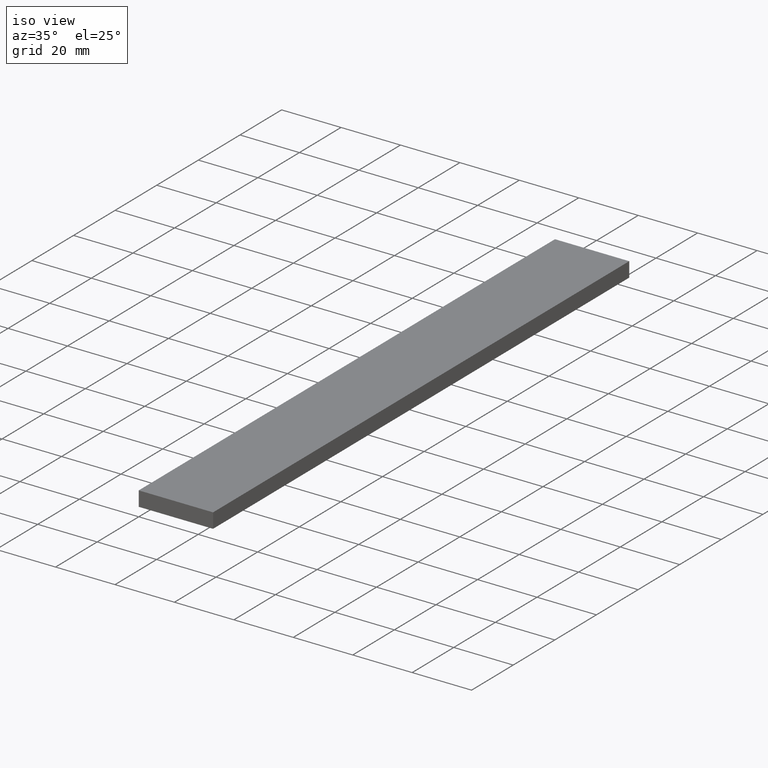
[diagram: clean part render]
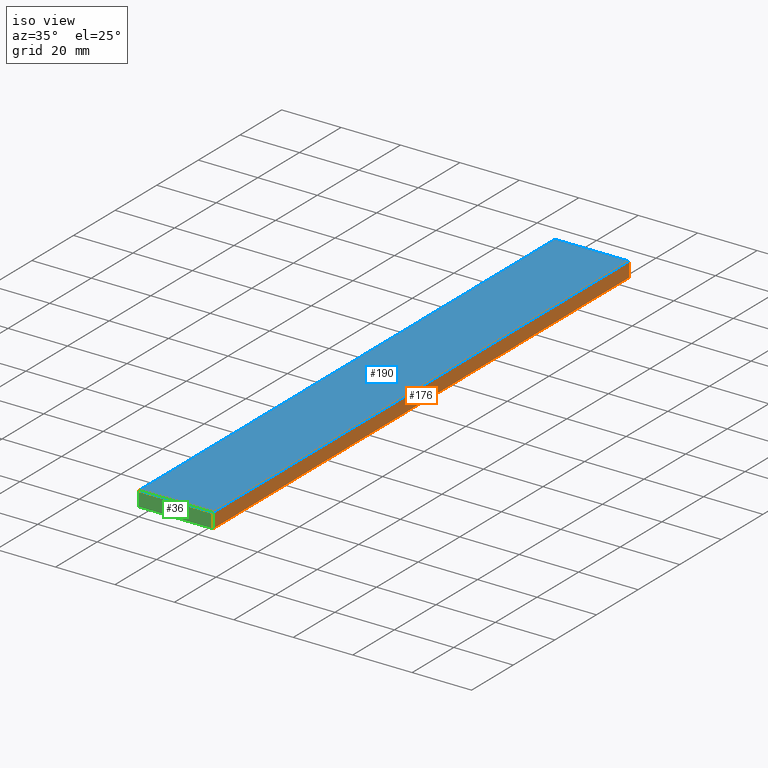
[diagram: same view with three faces highlighted in distinct colors, each labeled with its STEP entity id]
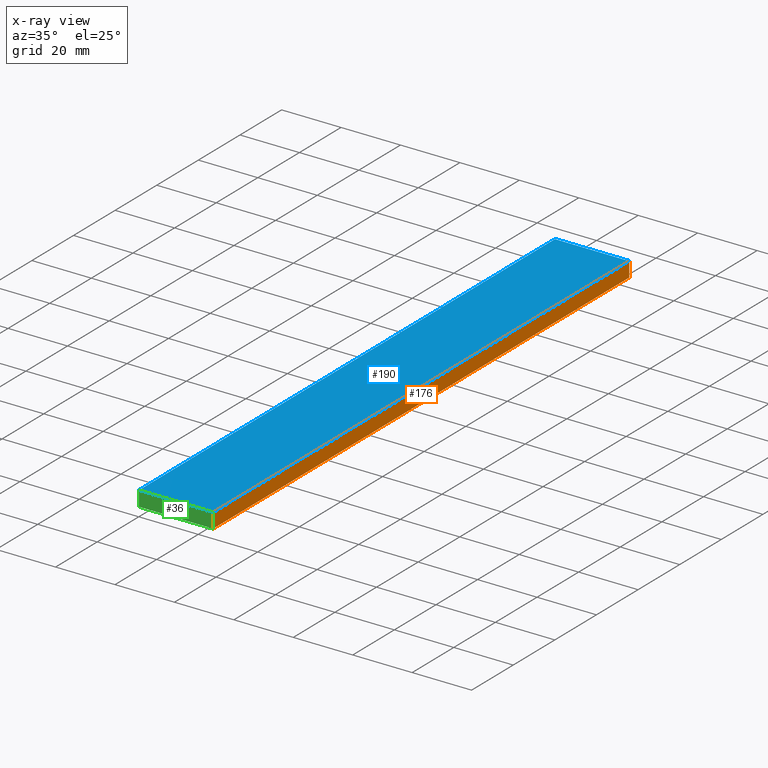
[diagram: x-ray of the same camera — body ghosted, the three highlighted faces saturated]
A machine part, iso view with three faces highlighted in distinct colors.
The next image is the same camera in x-ray (body ghosted, the three faces saturated) — at least one of them is partly hidden behind the body in this view.
Their STEP definitions:

[orange] entity #176 — the highlighted planar face has unit normal (-1, 0, 0).
#1 = EDGE_CURVE ( 'NONE', #182, #188, #45, .T. ) ;
#3 = CARTESIAN_POINT ( 'NONE',  ( 25.00000000000000000, 1000.000000000000000, 5.000000000000000000 ) ) ;
#9 = LINE ( 'NONE', #32, #164 ) ;
#17 = EDGE_CURVE ( 'NONE', #188, #22, #199, .T. ) ;
#21 = ORIENTED_EDGE ( 'NONE', *, *, #1, .T. ) ;
#22 = VERTEX_POINT ( 'NONE', #200 ) ;
#26 = ORIENTED_EDGE ( 'NONE', *, *, #17, .T. ) ;
#28 = ORIENTED_EDGE ( 'NONE', *, *, #38, .F. ) ;
#32 = CARTESIAN_POINT ( 'NONE',  ( 25.00000000000000000, 200.0000000000000000, 5.000000000000000000 ) ) ;
#35 = EDGE_LOOP ( 'NONE', ( #26, #208, #28, #21 ) ) ;
#38 = EDGE_CURVE ( 'NONE', #182, #51, #9, .T. ) ;
#40 = VECTOR ( 'NONE', #117, 1000.000000000000000 ) ;
#45 = LINE ( 'NONE', #3, #105 ) ;
#51 = VERTEX_POINT ( 'NONE', #53 ) ;
#53 = CARTESIAN_POINT ( 'NONE',  ( 25.00000000000000000, 200.0000000000000000, 0.0000000000000000000 ) ) ;
#62 = AXIS2_PLACEMENT_3D ( 'NONE', #169, #114, #184 ) ;
#65 = DIRECTION ( 'NONE',  ( 0.0000000000000000000, -1.000000000000000000, 0.0000000000000000000 ) ) ;
#93 = CARTESIAN_POINT ( 'NONE',  ( 25.00000000000000000, 200.0000000000000000, 5.000000000000000000 ) ) ;
#96 = DIRECTION ( 'NONE',  ( 0.0000000000000000000, 0.0000000000000000000, -1.000000000000000000 ) ) ;
#104 = EDGE_CURVE ( 'NONE', #51, #22, #185, .T. ) ;
#105 = VECTOR ( 'NONE', #65, 1000.000000000000000 ) ;
#114 = DIRECTION ( 'NONE',  ( -1.000000000000000000, 0.0000000000000000000, 0.0000000000000000000 ) ) ;
#117 = DIRECTION ( 'NONE',  ( 0.0000000000000000000, -1.000000000000000000, 0.0000000000000000000 ) ) ;
#134 = FACE_OUTER_BOUND ( 'NONE', #35, .T. ) ;
#137 = CARTESIAN_POINT ( 'NONE',  ( 25.00000000000000000, 1000.000000000000000, 0.0000000000000000000 ) ) ;
#159 = DIRECTION ( 'NONE',  ( 0.0000000000000000000, 0.0000000000000000000, -1.000000000000000000 ) ) ;
#160 = VECTOR ( 'NONE', #96, 1000.000000000000000 ) ;
#164 = VECTOR ( 'NONE', #159, 1000.000000000000000 ) ;
#168 = CARTESIAN_POINT ( 'NONE',  ( 25.00000000000000000, 0.0000000000000000000, 5.000000000000000000 ) ) ;
#169 = CARTESIAN_POINT ( 'NONE',  ( 25.00000000000000000, 1000.000000000000000, 5.000000000000000000 ) ) ;
#176 = ADVANCED_FACE ( 'NONE', ( #134 ), #201, .F. ) ;
#182 = VERTEX_POINT ( 'NONE', #93 ) ;
#184 = DIRECTION ( 'NONE',  ( 0.0000000000000000000, 0.0000000000000000000, 1.000000000000000000 ) ) ;
#185 = LINE ( 'NONE', #137, #40 ) ;
#188 = VERTEX_POINT ( 'NONE', #168 ) ;
#199 = LINE ( 'NONE', #233, #160 ) ;
#200 = CARTESIAN_POINT ( 'NONE',  ( 25.00000000000000000, 0.0000000000000000000, 0.0000000000000000000 ) ) ;
#201 = PLANE ( 'NONE',  #62 ) ;
#208 = ORIENTED_EDGE ( 'NONE', *, *, #104, .F. ) ;
#233 = CARTESIAN_POINT ( 'NONE',  ( 25.00000000000000000, 0.0000000000000000000, 5.000000000000000000 ) ) ;

[blue] entity #190 — the highlighted planar face has unit normal (0, 0, -1).
#1 = EDGE_CURVE ( 'NONE', #182, #188, #45, .T. ) ;
#3 = CARTESIAN_POINT ( 'NONE',  ( 25.00000000000000000, 1000.000000000000000, 5.000000000000000000 ) ) ;
#6 = ORIENTED_EDGE ( 'NONE', *, *, #71, .T. ) ;
#13 = CARTESIAN_POINT ( 'NONE',  ( 0.0000000000000000000, 200.0000000000000000, 5.000000000000000000 ) ) ;
#14 = CARTESIAN_POINT ( 'NONE',  ( 0.0000000000000000000, 0.0000000000000000000, 5.000000000000000000 ) ) ;
#24 = VECTOR ( 'NONE', #63, 1000.000000000000000 ) ;
#45 = LINE ( 'NONE', #3, #105 ) ;
#49 = CARTESIAN_POINT ( 'NONE',  ( 0.0000000000000000000, 1000.000000000000000, 5.000000000000000000 ) ) ;
#58 = VERTEX_POINT ( 'NONE', #14 ) ;
#63 = DIRECTION ( 'NONE',  ( 1.000000000000000000, 0.0000000000000000000, 0.0000000000000000000 ) ) ;
#65 = DIRECTION ( 'NONE',  ( 0.0000000000000000000, -1.000000000000000000, 0.0000000000000000000 ) ) ;
#66 = DIRECTION ( 'NONE',  ( 1.000000000000000000, 0.0000000000000000000, 0.0000000000000000000 ) ) ;
#71 = EDGE_CURVE ( 'NONE', #213, #58, #148, .T. ) ;
#79 = LINE ( 'NONE', #196, #24 ) ;
#89 = DIRECTION ( 'NONE',  ( 0.0000000000000000000, 0.0000000000000000000, -1.000000000000000000 ) ) ;
#93 = CARTESIAN_POINT ( 'NONE',  ( 25.00000000000000000, 200.0000000000000000, 5.000000000000000000 ) ) ;
#95 = AXIS2_PLACEMENT_3D ( 'NONE', #49, #89, #211 ) ;
#99 = ORIENTED_EDGE ( 'NONE', *, *, #1, .F. ) ;
#105 = VECTOR ( 'NONE', #65, 1000.000000000000000 ) ;
#113 = PLANE ( 'NONE',  #95 ) ;
#119 = CARTESIAN_POINT ( 'NONE',  ( 0.0000000000000000000, 1000.000000000000000, 5.000000000000000000 ) ) ;
#128 = LINE ( 'NONE', #13, #181 ) ;
#130 = EDGE_CURVE ( 'NONE', #213, #182, #128, .T. ) ;
#147 = EDGE_LOOP ( 'NONE', ( #212, #99, #220, #6 ) ) ;
#148 = LINE ( 'NONE', #119, #223 ) ;
#168 = CARTESIAN_POINT ( 'NONE',  ( 25.00000000000000000, 0.0000000000000000000, 5.000000000000000000 ) ) ;
#181 = VECTOR ( 'NONE', #66, 1000.000000000000000 ) ;
#182 = VERTEX_POINT ( 'NONE', #93 ) ;
#188 = VERTEX_POINT ( 'NONE', #168 ) ;
#190 = ADVANCED_FACE ( 'NONE', ( #193 ), #113, .F. ) ;
#193 = FACE_OUTER_BOUND ( 'NONE', #147, .T. ) ;
#196 = CARTESIAN_POINT ( 'NONE',  ( 0.0000000000000000000, 0.0000000000000000000, 5.000000000000000000 ) ) ;
#211 = DIRECTION ( 'NONE',  ( -1.000000000000000000, 0.0000000000000000000, 0.0000000000000000000 ) ) ;
#212 = ORIENTED_EDGE ( 'NONE', *, *, #234, .T. ) ;
#213 = VERTEX_POINT ( 'NONE', #230 ) ;
#216 = DIRECTION ( 'NONE',  ( 0.0000000000000000000, -1.000000000000000000, 0.0000000000000000000 ) ) ;
#220 = ORIENTED_EDGE ( 'NONE', *, *, #130, .F. ) ;
#223 = VECTOR ( 'NONE', #216, 1000.000000000000000 ) ;
#230 = CARTESIAN_POINT ( 'NONE',  ( 0.0000000000000000000, 200.0000000000000000, 5.000000000000000000 ) ) ;
#234 = EDGE_CURVE ( 'NONE', #58, #188, #79, .T. ) ;

[green] entity #36 — the highlighted planar face has unit normal (0, 1, 0).
#2 = LINE ( 'NONE', #11, #48 ) ;
#11 = CARTESIAN_POINT ( 'NONE',  ( 25.00000000000000000, 0.0000000000000000000, 0.0000000000000000000 ) ) ;
#14 = CARTESIAN_POINT ( 'NONE',  ( 0.0000000000000000000, 0.0000000000000000000, 5.000000000000000000 ) ) ;
#17 = EDGE_CURVE ( 'NONE', #188, #22, #199, .T. ) ;
#22 = VERTEX_POINT ( 'NONE', #200 ) ;
#24 = VECTOR ( 'NONE', #63, 1000.000000000000000 ) ;
#30 = DIRECTION ( 'NONE',  ( -1.000000000000000000, 0.0000000000000000000, 0.0000000000000000000 ) ) ;
#36 = ADVANCED_FACE ( 'NONE', ( #112 ), #142, .F. ) ;
#39 = VECTOR ( 'NONE', #47, 1000.000000000000000 ) ;
#43 = CARTESIAN_POINT ( 'NONE',  ( 0.0000000000000000000, 0.0000000000000000000, 0.0000000000000000000 ) ) ;
#47 = DIRECTION ( 'NONE',  ( 0.0000000000000000000, 0.0000000000000000000, 1.000000000000000000 ) ) ;
#48 = VECTOR ( 'NONE', #30, 1000.000000000000000 ) ;
#58 = VERTEX_POINT ( 'NONE', #14 ) ;
#63 = DIRECTION ( 'NONE',  ( 1.000000000000000000, 0.0000000000000000000, 0.0000000000000000000 ) ) ;
#77 = ORIENTED_EDGE ( 'NONE', *, *, #17, .F. ) ;
#79 = LINE ( 'NONE', #196, #24 ) ;
#81 = EDGE_LOOP ( 'NONE', ( #109, #237, #77, #197 ) ) ;
#82 = AXIS2_PLACEMENT_3D ( 'NONE', #122, #98, #206 ) ;
#88 = EDGE_CURVE ( 'NONE', #202, #58, #189, .T. ) ;
#94 = CARTESIAN_POINT ( 'NONE',  ( 0.0000000000000000000, 0.0000000000000000000, 0.0000000000000000000 ) ) ;
#96 = DIRECTION ( 'NONE',  ( 0.0000000000000000000, 0.0000000000000000000, -1.000000000000000000 ) ) ;
#98 = DIRECTION ( 'NONE',  ( -0.0000000000000000000, 1.000000000000000000, 0.0000000000000000000 ) ) ;
#109 = ORIENTED_EDGE ( 'NONE', *, *, #88, .F. ) ;
#112 = FACE_OUTER_BOUND ( 'NONE', #81, .T. ) ;
#122 = CARTESIAN_POINT ( 'NONE',  ( 0.0000000000000000000, 0.0000000000000000000, 0.0000000000000000000 ) ) ;
#126 = EDGE_CURVE ( 'NONE', #22, #202, #2, .T. ) ;
#142 = PLANE ( 'NONE',  #82 ) ;
#160 = VECTOR ( 'NONE', #96, 1000.000000000000000 ) ;
#168 = CARTESIAN_POINT ( 'NONE',  ( 25.00000000000000000, 0.0000000000000000000, 5.000000000000000000 ) ) ;
#188 = VERTEX_POINT ( 'NONE', #168 ) ;
#189 = LINE ( 'NONE', #94, #39 ) ;
#196 = CARTESIAN_POINT ( 'NONE',  ( 0.0000000000000000000, 0.0000000000000000000, 5.000000000000000000 ) ) ;
#197 = ORIENTED_EDGE ( 'NONE', *, *, #234, .F. ) ;
#199 = LINE ( 'NONE', #233, #160 ) ;
#200 = CARTESIAN_POINT ( 'NONE',  ( 25.00000000000000000, 0.0000000000000000000, 0.0000000000000000000 ) ) ;
#202 = VERTEX_POINT ( 'NONE', #43 ) ;
#206 = DIRECTION ( 'NONE',  ( 1.000000000000000000, 0.0000000000000000000, 0.0000000000000000000 ) ) ;
#233 = CARTESIAN_POINT ( 'NONE',  ( 25.00000000000000000, 0.0000000000000000000, 5.000000000000000000 ) ) ;
#234 = EDGE_CURVE ( 'NONE', #58, #188, #79, .T. ) ;
#237 = ORIENTED_EDGE ( 'NONE', *, *, #126, .F. ) ;